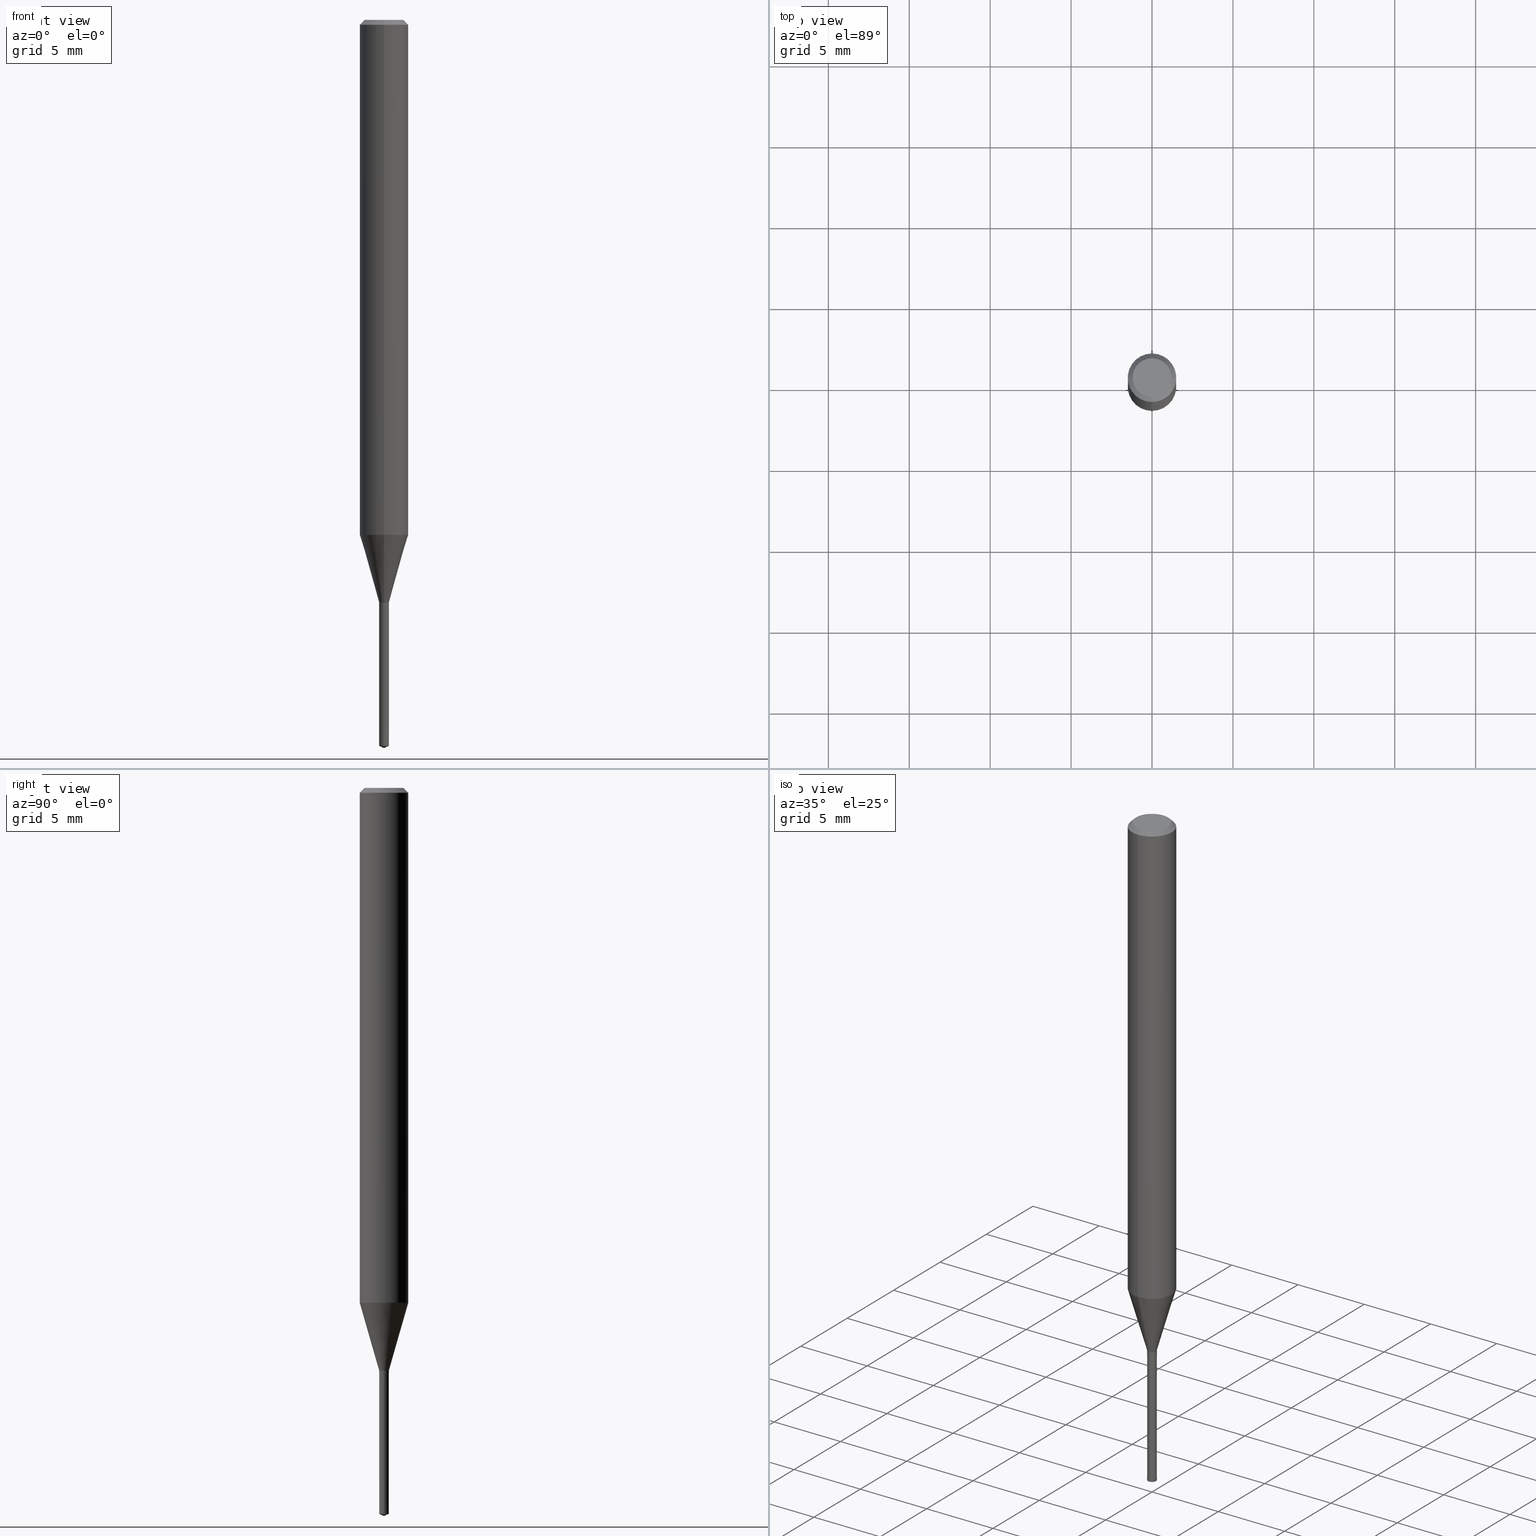
[diagram: canonical four-view strip — front | top / right | iso, engineering-drawing reading convention]
A machine part, canonical four-view strip (front | top / right | iso — engineering-drawing reading convention). The complete STEP part file that produces these views, byte-faithful:
ISO-10303-21;
HEADER;
FILE_DESCRIPTION(('no description'),'unknown implementation level');
FILE_NAME('UTDLX2060-090-Huellk.stp','  ',('CIMSOURCE GmbH'),('CADClick - KiM GmbH - www.kimweb.de'),'unknown preprocess','ACIS','unknown authorization');
FILE_SCHEMA(('automotive_design'));
ENDSEC;
DATA;
#1=MECHANICAL_DESIGN_GEOMETRIC_PRESENTATION_REPRESENTATION(' ',(#14,#15,#16,#17,#18,#19,#20,#21,#22,#23,#24,#25,#26,#27,#28,#29,#30,#31,#32,#33,#34,#35,#36,#37,#38,#39,#40,#41,#42,#43,#44,#45,#46,#47,#48,#49,#50,#51,#52,#53,#54,#55,#56,#57,#58,#59,#60,#61,#62,#63,#64,#65,#66,#67,#68,#69,#70,#71),#10);
#2=PRODUCT_DEFINITION_CONTEXT('',#72,'design');
#3=APPLICATION_PROTOCOL_DEFINITION('INTERNATIONAL STANDARD','automotive_design',1994,#72);
#4=PRODUCT_CATEGORY_RELATIONSHIP('NONE','NONE',#73,#74);
#5=SHAPE_DEFINITION_REPRESENTATION(#75,#76);
#6=PRODUCT_DEFINITION_CONTEXT('',#77,'design');
#7=APPLICATION_PROTOCOL_DEFINITION('INTERNATIONAL STANDARD','automotive_design',1994,#77);
#8=PRODUCT_CATEGORY_RELATIONSHIP('NONE','NONE',#78,#79);
#9=SHAPE_DEFINITION_REPRESENTATION(#80,#81);
#10= (GEOMETRIC_REPRESENTATION_CONTEXT(3)GLOBAL_UNCERTAINTY_ASSIGNED_CONTEXT((#84))GLOBAL_UNIT_ASSIGNED_CONTEXT((#86,#87,#88))REPRESENTATION_CONTEXT('NONE','WORKSPACE'));
#14=STYLED_ITEM('',(#90),#91);
#15=STYLED_ITEM('',(#92),#93);
#16=STYLED_ITEM('',(#94),#95);
#17=STYLED_ITEM('',(#96),#97);
#18=STYLED_ITEM('',(#98),#99);
#19=STYLED_ITEM('',(#100),#101);
#20=STYLED_ITEM('',(#102),#103);
#21=STYLED_ITEM('',(#104),#105);
#22=STYLED_ITEM('',(#106),#107);
#23=STYLED_ITEM('',(#108),#109);
#24=STYLED_ITEM('',(#110),#111);
#25=STYLED_ITEM('',(#112),#113);
#26=STYLED_ITEM('',(#114),#115);
#27=STYLED_ITEM('',(#116),#117);
#28=STYLED_ITEM('',(#118),#119);
#29=STYLED_ITEM('',(#120),#121);
#30=STYLED_ITEM('',(#122),#123);
#31=STYLED_ITEM('',(#124),#125);
#32=STYLED_ITEM('',(#126),#127);
#33=STYLED_ITEM('',(#128),#129);
#34=STYLED_ITEM('',(#130),#131);
#35=STYLED_ITEM('',(#132),#133);
#36=STYLED_ITEM('',(#134),#135);
#37=STYLED_ITEM('',(#136),#137);
#38=STYLED_ITEM('',(#138),#139);
#39=STYLED_ITEM('',(#140),#141);
#40=STYLED_ITEM('',(#142),#143);
#41=STYLED_ITEM('',(#144),#145);
#42=STYLED_ITEM('',(#146),#147);
#43=STYLED_ITEM('',(#148),#149);
#44=STYLED_ITEM('',(#150),#151);
#45=STYLED_ITEM('',(#152),#153);
#46=STYLED_ITEM('',(#154),#155);
#47=STYLED_ITEM('',(#156),#157);
#48=STYLED_ITEM('',(#158),#159);
#49=STYLED_ITEM('',(#160),#161);
#50=STYLED_ITEM('',(#162),#163);
#51=STYLED_ITEM('',(#164),#165);
#52=STYLED_ITEM('',(#166),#167);
#53=STYLED_ITEM('',(#168),#169);
#54=STYLED_ITEM('',(#170),#171);
#55=STYLED_ITEM('',(#172),#173);
#56=STYLED_ITEM('',(#174),#175);
#57=STYLED_ITEM('',(#176),#177);
#58=STYLED_ITEM('',(#178),#179);
#59=STYLED_ITEM('',(#180),#181);
#60=STYLED_ITEM('',(#182),#183);
#61=STYLED_ITEM('',(#184),#185);
#62=STYLED_ITEM('',(#186),#187);
#63=STYLED_ITEM('',(#188),#189);
#64=STYLED_ITEM('',(#190),#191);
#65=STYLED_ITEM('',(#192),#193);
#66=STYLED_ITEM('',(#194),#195);
#67=STYLED_ITEM('',(#196),#197);
#68=STYLED_ITEM('',(#198),#199);
#69=STYLED_ITEM('',(#200),#201);
#70=STYLED_ITEM('',(#202),#203);
#71=STYLED_ITEM('',(#204),#205);
#72=APPLICATION_CONTEXT(' ');
#73=PRODUCT_CATEGORY('part','NONE');
#74=PRODUCT_RELATED_PRODUCT_CATEGORY('detail',' ',(#206));
#75=PRODUCT_DEFINITION_SHAPE('NONE','NONE',#207);
#76=ADVANCED_BREP_SHAPE_REPRESENTATION('1',(#143,#208),#10);
#77=APPLICATION_CONTEXT(' ');
#78=PRODUCT_CATEGORY('part','NONE');
#79=PRODUCT_RELATED_PRODUCT_CATEGORY('detail',' ',(#209));
#80=PRODUCT_DEFINITION_SHAPE('NONE','NONE',#210);
#81=ADVANCED_BREP_SHAPE_REPRESENTATION('2',(#169,#211),#10);
#84=UNCERTAINTY_MEASURE_WITH_UNIT(LENGTH_MEASURE(1.0E-006),#86,'','');
#86= (CONVERSION_BASED_UNIT('MILLIMETRE',#214)LENGTH_UNIT()NAMED_UNIT(#217));
#87= (NAMED_UNIT(#219)PLANE_ANGLE_UNIT()SI_UNIT($,.RADIAN.));
#88= (NAMED_UNIT(#219)SOLID_ANGLE_UNIT()SI_UNIT($,.STERADIAN.));
#90=PRESENTATION_STYLE_ASSIGNMENT((#225));
#91=VERTEX_POINT('',#226);
#92=PRESENTATION_STYLE_ASSIGNMENT((#227));
#93=VERTEX_POINT('',#228);
#94=PRESENTATION_STYLE_ASSIGNMENT((#229));
#95=VERTEX_POINT('',#230);
#96=PRESENTATION_STYLE_ASSIGNMENT((#231));
#97=EDGE_CURVE('',#195,#155,#232,.T.);
#98=PRESENTATION_STYLE_ASSIGNMENT((#233));
#99=VERTEX_POINT('',#234);
#100=PRESENTATION_STYLE_ASSIGNMENT((#235));
#101=EDGE_CURVE('',#141,#167,#236,.T.);
#102=PRESENTATION_STYLE_ASSIGNMENT((#237));
#103=ADVANCED_FACE('',(#238),#239,.T.);
#104=PRESENTATION_STYLE_ASSIGNMENT((#240));
#105=ADVANCED_FACE('',(#241),#242,.T.);
#106=PRESENTATION_STYLE_ASSIGNMENT((#243));
#107=VERTEX_POINT('',#244);
#108=PRESENTATION_STYLE_ASSIGNMENT((#245));
#109=ADVANCED_FACE('',(#246),#247,.T.);
#110=PRESENTATION_STYLE_ASSIGNMENT((#248));
#111=EDGE_CURVE('',#179,#99,#249,.T.);
#112=PRESENTATION_STYLE_ASSIGNMENT((#250));
#113=ADVANCED_FACE('',(#251),#252,.T.);
#114=PRESENTATION_STYLE_ASSIGNMENT((#253));
#115=ADVANCED_FACE('',(#254),#255,.T.);
#116=PRESENTATION_STYLE_ASSIGNMENT((#256));
#117=ADVANCED_FACE('',(#257),#258,.T.);
#118=PRESENTATION_STYLE_ASSIGNMENT((#259));
#119=VERTEX_POINT('',#260);
#120=PRESENTATION_STYLE_ASSIGNMENT((#261));
#121=EDGE_CURVE('',#179,#107,#262,.T.);
#122=PRESENTATION_STYLE_ASSIGNMENT((#263));
#123=ADVANCED_FACE('',(#264),#265,.T.);
#124=PRESENTATION_STYLE_ASSIGNMENT((#266));
#125=ADVANCED_FACE('',(#267),#268,.T.);
#126=PRESENTATION_STYLE_ASSIGNMENT((#269));
#127=EDGE_CURVE('',#155,#119,#270,.T.);
#128=PRESENTATION_STYLE_ASSIGNMENT((#271));
#129=EDGE_CURVE('',#91,#93,#272,.T.);
#130=PRESENTATION_STYLE_ASSIGNMENT((#273));
#131=EDGE_CURVE('',#119,#155,#274,.T.);
#132=PRESENTATION_STYLE_ASSIGNMENT((#275));
#133=EDGE_CURVE('',#197,#91,#276,.T.);
#134=PRESENTATION_STYLE_ASSIGNMENT((#277));
#135=EDGE_CURVE('',#181,#119,#278,.T.);
#136=PRESENTATION_STYLE_ASSIGNMENT((#279));
#137=ADVANCED_FACE('',(#280),#281,.T.);
#138=PRESENTATION_STYLE_ASSIGNMENT((#282));
#139=EDGE_CURVE('',#163,#91,#283,.T.);
#140=PRESENTATION_STYLE_ASSIGNMENT((#284));
#141=VERTEX_POINT('',#285);
#142=PRESENTATION_STYLE_ASSIGNMENT((#286));
#143=MANIFOLD_SOLID_BREP('1',#287);
#144=PRESENTATION_STYLE_ASSIGNMENT((#288));
#145=EDGE_CURVE('',#99,#141,#289,.T.);
#146=PRESENTATION_STYLE_ASSIGNMENT((#290));
#147=EDGE_CURVE('',#155,#183,#291,.T.);
#148=PRESENTATION_STYLE_ASSIGNMENT((#292));
#149=ADVANCED_FACE('',(#293),#294,.T.);
#150=PRESENTATION_STYLE_ASSIGNMENT((#295));
#151=EDGE_CURVE('',#107,#163,#296,.T.);
#152=PRESENTATION_STYLE_ASSIGNMENT((#297));
#153=EDGE_CURVE('',#167,#179,#298,.T.);
#154=PRESENTATION_STYLE_ASSIGNMENT((#299));
#155=VERTEX_POINT('',#300);
#156=PRESENTATION_STYLE_ASSIGNMENT((#301));
#157=EDGE_CURVE('',#91,#163,#302,.T.);
#158=PRESENTATION_STYLE_ASSIGNMENT((#303));
#159=EDGE_CURVE('',#107,#93,#304,.T.);
#160=PRESENTATION_STYLE_ASSIGNMENT((#305));
#161=EDGE_CURVE('',#163,#95,#306,.T.);
#162=PRESENTATION_STYLE_ASSIGNMENT((#307));
#163=VERTEX_POINT('',#308);
#164=PRESENTATION_STYLE_ASSIGNMENT((#309));
#165=EDGE_CURVE('',#99,#179,#310,.T.);
#166=PRESENTATION_STYLE_ASSIGNMENT((#311));
#167=VERTEX_POINT('',#312);
#168=PRESENTATION_STYLE_ASSIGNMENT((#313));
#169=MANIFOLD_SOLID_BREP('2',#314);
#170=PRESENTATION_STYLE_ASSIGNMENT((#315));
#171=EDGE_CURVE('',#93,#107,#316,.T.);
#172=PRESENTATION_STYLE_ASSIGNMENT((#317));
#173=ADVANCED_FACE('',(#318),#319,.T.);
#174=PRESENTATION_STYLE_ASSIGNMENT((#320));
#175=EDGE_CURVE('',#197,#95,#321,.T.);
#176=PRESENTATION_STYLE_ASSIGNMENT((#322));
#177=EDGE_CURVE('',#181,#183,#323,.T.);
#178=PRESENTATION_STYLE_ASSIGNMENT((#324));
#179=VERTEX_POINT('',#325);
#180=PRESENTATION_STYLE_ASSIGNMENT((#326));
#181=VERTEX_POINT('',#327);
#182=PRESENTATION_STYLE_ASSIGNMENT((#328));
#183=VERTEX_POINT('',#329);
#184=PRESENTATION_STYLE_ASSIGNMENT((#330));
#185=EDGE_CURVE('',#95,#197,#331,.T.);
#186=PRESENTATION_STYLE_ASSIGNMENT((#332));
#187=EDGE_CURVE('',#119,#195,#333,.T.);
#188=PRESENTATION_STYLE_ASSIGNMENT((#334));
#189=EDGE_CURVE('',#183,#181,#335,.T.);
#190=PRESENTATION_STYLE_ASSIGNMENT((#336));
#191=ADVANCED_FACE('',(#337),#338,.T.);
#192=PRESENTATION_STYLE_ASSIGNMENT((#339));
#193=EDGE_CURVE('',#167,#141,#340,.T.);
#194=PRESENTATION_STYLE_ASSIGNMENT((#341));
#195=VERTEX_POINT('',#342);
#196=PRESENTATION_STYLE_ASSIGNMENT((#343));
#197=VERTEX_POINT('',#344);
#198=PRESENTATION_STYLE_ASSIGNMENT((#345));
#199=ADVANCED_FACE('',(#346),#347,.T.);
#200=PRESENTATION_STYLE_ASSIGNMENT((#348));
#201=EDGE_CURVE('',#93,#99,#349,.T.);
#202=PRESENTATION_STYLE_ASSIGNMENT((#350));
#203=ADVANCED_FACE('',(#351),#352,.T.);
#204=PRESENTATION_STYLE_ASSIGNMENT((#353));
#205=ADVANCED_FACE('',(#354),#355,.T.);
#206=PRODUCT('1','1','PART-1-DESC',(#356));
#207=PRODUCT_DEFINITION('NONE','NONE',#357,#2);
#208=AXIS2_PLACEMENT_3D('',#358,#359,#360);
#209=PRODUCT('2','2','PART-2-DESC',(#361));
#210=PRODUCT_DEFINITION('NONE','NONE',#362,#6);
#211=AXIS2_PLACEMENT_3D('',#363,#364,#365);
#214=LENGTH_MEASURE_WITH_UNIT(LENGTH_MEASURE(1.0),#366);
#217=DIMENSIONAL_EXPONENTS(1.0,0.0,0.0,0.0,0.0,0.0,0.0);
#219=DIMENSIONAL_EXPONENTS(0.0,0.0,0.0,0.0,0.0,0.0,0.0);
#225=POINT_STYLE(' ',#367,POSITIVE_LENGTH_MEASURE(1.0E-006),#368);
#226=CARTESIAN_POINT('',(3.67381906146713E-017,-0.3,-35.9991339745962));
#227=POINT_STYLE(' ',#369,POSITIVE_LENGTH_MEASURE(1.0E-006),#370);
#228=CARTESIAN_POINT('',(1.83690953073357E-016,-1.5,-31.815));
#229=POINT_STYLE(' ',#371,POSITIVE_LENGTH_MEASURE(1.0E-006),#372);
#230=CARTESIAN_POINT('',(0.0,0.3005,-36.0));
#231=CURVE_STYLE('',#373,POSITIVE_LENGTH_MEASURE(1.0E-006),#374);
#232=LINE('',#375,#376);
#233=POINT_STYLE(' ',#377,POSITIVE_LENGTH_MEASURE(1.0E-006),#378);
#234=CARTESIAN_POINT('',(1.83690953073357E-016,-1.5,-0.300000000000001));
#235=CURVE_STYLE('',#379,POSITIVE_LENGTH_MEASURE(1.0E-006),#380);
#236=CIRCLE('',#381,1.2);
#237=SURFACE_STYLE_USAGE(.BOTH.,#382);
#238=FACE_OUTER_BOUND('',#383,.T.);
#239=CONICAL_SURFACE('',#384,0.30025,0.523598775598408);
#240=SURFACE_STYLE_USAGE(.BOTH.,#385);
#241=FACE_OUTER_BOUND('',#386,.T.);
#242=CONICAL_SURFACE('',#387,0.30025,0.523598775598408);
#243=POINT_STYLE(' ',#388,POSITIVE_LENGTH_MEASURE(1.0E-006),#389);
#244=CARTESIAN_POINT('',(0.0,1.5,-31.815));
#245=SURFACE_STYLE_USAGE(.BOTH.,#390);
#246=FACE_OUTER_BOUND('',#391,.T.);
#247=CONICAL_SURFACE('',#392,0.9,0.279301019176269);
#248=CURVE_STYLE('',#393,POSITIVE_LENGTH_MEASURE(1.0E-006),#394);
#249=CIRCLE('',#395,1.5);
#250=SURFACE_STYLE_USAGE(.BOTH.,#396);
#251=FACE_OUTER_BOUND('',#397,.T.);
#252=CONICAL_SURFACE('',#398,0.3005,0.000112865444711671);
#253=SURFACE_STYLE_USAGE(.BOTH.,#399);
#254=FACE_OUTER_BOUND('',#400,.T.);
#255=PLANE('',#401);
#256=SURFACE_STYLE_USAGE(.BOTH.,#402);
#257=FACE_OUTER_BOUND('',#403,.T.);
#258=CONICAL_SURFACE('',#404,0.3005,0.000112865444711671);
#259=POINT_STYLE(' ',#405,POSITIVE_LENGTH_MEASURE(1.0E-006),#406);
#260=CARTESIAN_POINT('',(-0.3,0.0,-44.8601077));
#261=CURVE_STYLE('',#407,POSITIVE_LENGTH_MEASURE(1.0E-006),#408);
#262=LINE('',#409,#410);
#263=SURFACE_STYLE_USAGE(.BOTH.,#411);
#264=FACE_OUTER_BOUND('',#412,.T.);
#265=CYLINDRICAL_SURFACE('',#413,1.5);
#266=SURFACE_STYLE_USAGE(.BOTH.,#414);
#267=FACE_OUTER_BOUND('',#415,.T.);
#268=CONICAL_SURFACE('',#416,0.9,0.279301019176269);
#269=CURVE_STYLE('',#417,POSITIVE_LENGTH_MEASURE(1.0E-006),#418);
#270=CIRCLE('',#419,0.3);
#271=CURVE_STYLE('',#420,POSITIVE_LENGTH_MEASURE(1.0E-006),#421);
#272=LINE('',#422,#423);
#273=CURVE_STYLE('',#424,POSITIVE_LENGTH_MEASURE(1.0E-006),#425);
#274=CIRCLE('',#426,0.3);
#275=CURVE_STYLE('',#427,POSITIVE_LENGTH_MEASURE(1.0E-006),#428);
#276=LINE('',#429,#430);
#277=CURVE_STYLE('',#431,POSITIVE_LENGTH_MEASURE(1.0E-006),#432);
#278=LINE('',#433,#434);
#279=SURFACE_STYLE_USAGE(.BOTH.,#435);
#280=FACE_OUTER_BOUND('',#436,.T.);
#281=PLANE('',#437);
#282=CURVE_STYLE('',#438,POSITIVE_LENGTH_MEASURE(1.0E-006),#439);
#283=CIRCLE('',#440,0.3);
#284=POINT_STYLE(' ',#441,POSITIVE_LENGTH_MEASURE(1.0E-006),#442);
#285=CARTESIAN_POINT('',(1.46952762458685E-016,-1.2,0.0));
#286=SURFACE_STYLE_USAGE(.BOTH.,#443);
#287=CLOSED_SHELL('',(#105,#109,#191,#149,#137,#205,#123,#125,#103,#173));
#288=CURVE_STYLE('',#444,POSITIVE_LENGTH_MEASURE(1.0E-006),#445);
#289=LINE('',#446,#447);
#290=CURVE_STYLE('',#448,POSITIVE_LENGTH_MEASURE(1.0E-006),#449);
#291=LINE('',#450,#451);
#292=SURFACE_STYLE_USAGE(.BOTH.,#452);
#293=FACE_OUTER_BOUND('',#453,.T.);
#294=CONICAL_SURFACE('',#454,1.35,0.785398163397447);
#295=CURVE_STYLE('',#455,POSITIVE_LENGTH_MEASURE(1.0E-006),#456);
#296=LINE('',#457,#458);
#297=CURVE_STYLE('',#459,POSITIVE_LENGTH_MEASURE(1.0E-006),#460);
#298=LINE('',#461,#462);
#299=POINT_STYLE(' ',#463,POSITIVE_LENGTH_MEASURE(1.0E-006),#464);
#300=CARTESIAN_POINT('',(0.3,3.67381906146713E-017,-44.8601077));
#301=CURVE_STYLE('',#465,POSITIVE_LENGTH_MEASURE(1.0E-006),#466);
#302=CIRCLE('',#467,0.3);
#303=CURVE_STYLE('',#468,POSITIVE_LENGTH_MEASURE(1.0E-006),#469);
#304=CIRCLE('',#470,1.5);
#305=CURVE_STYLE('',#471,POSITIVE_LENGTH_MEASURE(1.0E-006),#472);
#306=LINE('',#473,#474);
#307=POINT_STYLE(' ',#475,POSITIVE_LENGTH_MEASURE(1.0E-006),#476);
#308=CARTESIAN_POINT('',(0.0,0.3,-35.9991339745962));
#309=CURVE_STYLE('',#477,POSITIVE_LENGTH_MEASURE(1.0E-006),#478);
#310=CIRCLE('',#479,1.5);
#311=POINT_STYLE(' ',#480,POSITIVE_LENGTH_MEASURE(1.0E-006),#481);
#312=CARTESIAN_POINT('',(0.0,1.2,0.0));
#313=SURFACE_STYLE_USAGE(.BOTH.,#482);
#314=CLOSED_SHELL('',(#199,#113,#115,#117,#203));
#315=CURVE_STYLE('',#483,POSITIVE_LENGTH_MEASURE(1.0E-006),#484);
#316=CIRCLE('',#485,1.5);
#317=SURFACE_STYLE_USAGE(.BOTH.,#486);
#318=FACE_OUTER_BOUND('',#487,.T.);
#319=PLANE('',#488);
#320=CURVE_STYLE('',#489,POSITIVE_LENGTH_MEASURE(1.0E-006),#490);
#321=CIRCLE('',#491,0.3005);
#322=CURVE_STYLE('',#492,POSITIVE_LENGTH_MEASURE(1.0E-006),#493);
#323=CIRCLE('',#494,0.301);
#324=POINT_STYLE(' ',#495,POSITIVE_LENGTH_MEASURE(1.0E-006),#496);
#325=CARTESIAN_POINT('',(0.0,1.5,-0.300000000000001));
#326=POINT_STYLE(' ',#497,POSITIVE_LENGTH_MEASURE(1.0E-006),#498);
#327=CARTESIAN_POINT('',(-0.301,0.0,-36.0));
#328=POINT_STYLE(' ',#499,POSITIVE_LENGTH_MEASURE(1.0E-006),#500);
#329=CARTESIAN_POINT('',(0.301,3.68606512500536E-017,-36.0));
#330=CURVE_STYLE('',#501,POSITIVE_LENGTH_MEASURE(1.0E-006),#502);
#331=CIRCLE('',#503,0.3005);
#332=CURVE_STYLE('',#504,POSITIVE_LENGTH_MEASURE(1.0E-006),#505);
#333=LINE('',#506,#507);
#334=CURVE_STYLE('',#508,POSITIVE_LENGTH_MEASURE(1.0E-006),#509);
#335=CIRCLE('',#510,0.301);
#336=SURFACE_STYLE_USAGE(.BOTH.,#511);
#337=FACE_OUTER_BOUND('',#512,.T.);
#338=CYLINDRICAL_SURFACE('',#513,1.5);
#339=CURVE_STYLE('',#514,POSITIVE_LENGTH_MEASURE(1.0E-006),#515);
#340=CIRCLE('',#516,1.2);
#341=POINT_STYLE(' ',#517,POSITIVE_LENGTH_MEASURE(1.0E-006),#518);
#342=CARTESIAN_POINT('',(0.0,0.0,-45.0));
#343=POINT_STYLE(' ',#519,POSITIVE_LENGTH_MEASURE(1.0E-006),#520);
#344=CARTESIAN_POINT('',(3.67994209323624E-017,-0.3005,-36.0));
#345=SURFACE_STYLE_USAGE(.BOTH.,#521);
#346=FACE_OUTER_BOUND('',#522,.T.);
#347=CONICAL_SURFACE('',#523,0.15,1.13446400680488);
#348=CURVE_STYLE('',#524,POSITIVE_LENGTH_MEASURE(1.0E-006),#525);
#349=LINE('',#526,#527);
#350=SURFACE_STYLE_USAGE(.BOTH.,#528);
#351=FACE_OUTER_BOUND('',#529,.T.);
#352=CONICAL_SURFACE('',#530,0.15,1.13446400680488);
#353=SURFACE_STYLE_USAGE(.BOTH.,#531);
#354=FACE_OUTER_BOUND('',#532,.T.);
#355=CONICAL_SURFACE('',#533,1.35,0.785398163397447);
#356=PRODUCT_CONTEXT('',#72,'mechanical');
#357=PRODUCT_DEFINITION_FORMATION_WITH_SPECIFIED_SOURCE(' ','NONE',#206,.NOT_KNOWN.);
#358=CARTESIAN_POINT('',(0.0,0.0,0.0));
#359=DIRECTION('',(0.0,0.0,1.0));
#360=DIRECTION('',(1.0,0.0,0.0));
#361=PRODUCT_CONTEXT('',#77,'mechanical');
#362=PRODUCT_DEFINITION_FORMATION_WITH_SPECIFIED_SOURCE(' ','NONE',#209,.NOT_KNOWN.);
#363=CARTESIAN_POINT('',(0.0,0.0,0.0));
#364=DIRECTION('',(0.0,0.0,1.0));
#365=DIRECTION('',(1.0,0.0,0.0));
#366= (NAMED_UNIT(#217)LENGTH_UNIT()SI_UNIT(.MILLI.,.METRE.));
#367=PRE_DEFINED_MARKER('');
#368=COLOUR_RGB('',0.498039215803146,0.498039215803146,0.498039215803146);
#369=PRE_DEFINED_MARKER('');
#370=COLOUR_RGB('',0.498039215803146,0.498039215803146,0.498039215803146);
#371=PRE_DEFINED_MARKER('');
#372=COLOUR_RGB('',0.498039215803146,0.498039215803146,0.498039215803146);
#373=DRAUGHTING_PRE_DEFINED_CURVE_FONT('continuous');
#374=COLOUR_RGB('',0.800000011920929,0.800000011920929,0.800000011920929);
#375=CARTESIAN_POINT('',(0.15,1.83690953073357E-017,-44.93005385));
#376=VECTOR('',#535,1.0);
#377=PRE_DEFINED_MARKER('');
#378=COLOUR_RGB('',0.498039215803146,0.498039215803146,0.498039215803146);
#379=DRAUGHTING_PRE_DEFINED_CURVE_FONT('continuous');
#380=COLOUR_RGB('',0.498039215803146,0.498039215803146,0.498039215803146);
#381=AXIS2_PLACEMENT_3D('',#536,#537,#538);
#382=SURFACE_SIDE_STYLE('',(#539));
#383=EDGE_LOOP('',(#540,#541,#542,#543));
#384=AXIS2_PLACEMENT_3D('',#544,#545,#546);
#385=SURFACE_SIDE_STYLE('',(#547));
#386=EDGE_LOOP('',(#548,#549,#550,#551));
#387=AXIS2_PLACEMENT_3D('',#552,#553,#554);
#388=PRE_DEFINED_MARKER('');
#389=COLOUR_RGB('',0.498039215803146,0.498039215803146,0.498039215803146);
#390=SURFACE_SIDE_STYLE('',(#555));
#391=EDGE_LOOP('',(#556,#557,#558,#559));
#392=AXIS2_PLACEMENT_3D('',#560,#561,#562);
#393=DRAUGHTING_PRE_DEFINED_CURVE_FONT('continuous');
#394=COLOUR_RGB('',0.498039215803146,0.498039215803146,0.498039215803146);
#395=AXIS2_PLACEMENT_3D('',#563,#564,#565);
#396=SURFACE_SIDE_STYLE('',(#566));
#397=EDGE_LOOP('',(#567,#568,#569,#570));
#398=AXIS2_PLACEMENT_3D('',#571,#572,#573);
#399=SURFACE_SIDE_STYLE('',(#574));
#400=EDGE_LOOP('',(#575,#576));
#401=AXIS2_PLACEMENT_3D('',#577,#578,#579);
#402=SURFACE_SIDE_STYLE('',(#580));
#403=EDGE_LOOP('',(#581,#582,#583,#584));
#404=AXIS2_PLACEMENT_3D('',#585,#586,#587);
#405=PRE_DEFINED_MARKER('');
#406=COLOUR_RGB('',0.800000011920929,0.800000011920929,0.800000011920929);
#407=DRAUGHTING_PRE_DEFINED_CURVE_FONT('continuous');
#408=COLOUR_RGB('',0.498039215803146,0.498039215803146,0.498039215803146);
#409=CARTESIAN_POINT('',(-1.83690953073357E-016,1.5,-16.0575));
#410=VECTOR('',#588,1.0);
#411=SURFACE_SIDE_STYLE('',(#589));
#412=EDGE_LOOP('',(#590,#591,#592,#593));
#413=AXIS2_PLACEMENT_3D('',#594,#595,#596);
#414=SURFACE_SIDE_STYLE('',(#597));
#415=EDGE_LOOP('',(#598,#599,#600,#601));
#416=AXIS2_PLACEMENT_3D('',#602,#603,#604);
#417=DRAUGHTING_PRE_DEFINED_CURVE_FONT('continuous');
#418=COLOUR_RGB('',0.800000011920929,0.800000011920929,0.800000011920929);
#419=AXIS2_PLACEMENT_3D('',#605,#606,#607);
#420=DRAUGHTING_PRE_DEFINED_CURVE_FONT('continuous');
#421=COLOUR_RGB('',0.498039215803146,0.498039215803146,0.498039215803146);
#422=CARTESIAN_POINT('',(1.10214571844014E-016,-0.9,-33.9070669872981));
#423=VECTOR('',#608,1.0);
#424=DRAUGHTING_PRE_DEFINED_CURVE_FONT('continuous');
#425=COLOUR_RGB('',0.800000011920929,0.800000011920929,0.800000011920929);
#426=AXIS2_PLACEMENT_3D('',#609,#610,#611);
#427=DRAUGHTING_PRE_DEFINED_CURVE_FONT('continuous');
#428=COLOUR_RGB('',0.498039215803146,0.498039215803146,0.498039215803146);
#429=CARTESIAN_POINT('',(3.67688057735169E-017,-0.30025,-35.9995669872981));
#430=VECTOR('',#612,1.0);
#431=DRAUGHTING_PRE_DEFINED_CURVE_FONT('continuous');
#432=COLOUR_RGB('',0.800000011920929,0.800000011920929,0.800000011920929);
#433=CARTESIAN_POINT('',(-0.3005,-3.67994209323625E-017,-40.43005385));
#434=VECTOR('',#613,1.0);
#435=SURFACE_SIDE_STYLE('',(#614));
#436=EDGE_LOOP('',(#615,#616));
#437=AXIS2_PLACEMENT_3D('',#617,#618,#619);
#438=DRAUGHTING_PRE_DEFINED_CURVE_FONT('continuous');
#439=COLOUR_RGB('',0.498039215803146,0.498039215803146,0.498039215803146);
#440=AXIS2_PLACEMENT_3D('',#620,#621,#622);
#441=PRE_DEFINED_MARKER('');
#442=COLOUR_RGB('',0.498039215803146,0.498039215803146,0.498039215803146);
#443=SURFACE_SIDE_STYLE('',(#623));
#444=DRAUGHTING_PRE_DEFINED_CURVE_FONT('continuous');
#445=COLOUR_RGB('',0.498039215803146,0.498039215803146,0.498039215803146);
#446=CARTESIAN_POINT('',(1.65321857766021E-016,-1.35,-0.149999999999999));
#447=VECTOR('',#624,1.0);
#448=DRAUGHTING_PRE_DEFINED_CURVE_FONT('continuous');
#449=COLOUR_RGB('',0.800000011920929,0.800000011920929,0.800000011920929);
#450=CARTESIAN_POINT('',(0.3005,3.67994209323624E-017,-40.43005385));
#451=VECTOR('',#625,1.0);
#452=SURFACE_SIDE_STYLE('',(#626));
#453=EDGE_LOOP('',(#627,#628,#629,#630));
#454=AXIS2_PLACEMENT_3D('',#631,#632,#633);
#455=DRAUGHTING_PRE_DEFINED_CURVE_FONT('continuous');
#456=COLOUR_RGB('',0.498039215803146,0.498039215803146,0.498039215803146);
#457=CARTESIAN_POINT('',(-1.10214571844014E-016,0.9,-33.9070669872981));
#458=VECTOR('',#634,1.0);
#459=DRAUGHTING_PRE_DEFINED_CURVE_FONT('continuous');
#460=COLOUR_RGB('',0.498039215803146,0.498039215803146,0.498039215803146);
#461=CARTESIAN_POINT('',(-1.65321857766021E-016,1.35,-0.149999999999999));
#462=VECTOR('',#635,1.0);
#463=PRE_DEFINED_MARKER('');
#464=COLOUR_RGB('',0.800000011920929,0.800000011920929,0.800000011920929);
#465=DRAUGHTING_PRE_DEFINED_CURVE_FONT('continuous');
#466=COLOUR_RGB('',0.498039215803146,0.498039215803146,0.498039215803146);
#467=AXIS2_PLACEMENT_3D('',#636,#637,#638);
#468=DRAUGHTING_PRE_DEFINED_CURVE_FONT('continuous');
#469=COLOUR_RGB('',0.498039215803146,0.498039215803146,0.498039215803146);
#470=AXIS2_PLACEMENT_3D('',#639,#640,#641);
#471=DRAUGHTING_PRE_DEFINED_CURVE_FONT('continuous');
#472=COLOUR_RGB('',0.498039215803146,0.498039215803146,0.498039215803146);
#473=CARTESIAN_POINT('',(-3.67688057735169E-017,0.30025,-35.9995669872981));
#474=VECTOR('',#642,1.0);
#475=PRE_DEFINED_MARKER('');
#476=COLOUR_RGB('',0.498039215803146,0.498039215803146,0.498039215803146);
#477=DRAUGHTING_PRE_DEFINED_CURVE_FONT('continuous');
#478=COLOUR_RGB('',0.498039215803146,0.498039215803146,0.498039215803146);
#479=AXIS2_PLACEMENT_3D('',#643,#644,#645);
#480=PRE_DEFINED_MARKER('');
#481=COLOUR_RGB('',0.498039215803146,0.498039215803146,0.498039215803146);
#482=SURFACE_SIDE_STYLE('',(#646));
#483=DRAUGHTING_PRE_DEFINED_CURVE_FONT('continuous');
#484=COLOUR_RGB('',0.498039215803146,0.498039215803146,0.498039215803146);
#485=AXIS2_PLACEMENT_3D('',#647,#648,#649);
#486=SURFACE_SIDE_STYLE('',(#650));
#487=EDGE_LOOP('',(#651,#652));
#488=AXIS2_PLACEMENT_3D('',#653,#654,#655);
#489=DRAUGHTING_PRE_DEFINED_CURVE_FONT('continuous');
#490=COLOUR_RGB('',0.498039215803146,0.498039215803146,0.498039215803146);
#491=AXIS2_PLACEMENT_3D('',#656,#657,#658);
#492=DRAUGHTING_PRE_DEFINED_CURVE_FONT('continuous');
#493=COLOUR_RGB('',0.800000011920929,0.800000011920929,0.800000011920929);
#494=AXIS2_PLACEMENT_3D('',#659,#660,#661);
#495=PRE_DEFINED_MARKER('');
#496=COLOUR_RGB('',0.498039215803146,0.498039215803146,0.498039215803146);
#497=PRE_DEFINED_MARKER('');
#498=COLOUR_RGB('',0.800000011920929,0.800000011920929,0.800000011920929);
#499=PRE_DEFINED_MARKER('');
#500=COLOUR_RGB('',0.800000011920929,0.800000011920929,0.800000011920929);
#501=DRAUGHTING_PRE_DEFINED_CURVE_FONT('continuous');
#502=COLOUR_RGB('',0.498039215803146,0.498039215803146,0.498039215803146);
#503=AXIS2_PLACEMENT_3D('',#662,#663,#664);
#504=DRAUGHTING_PRE_DEFINED_CURVE_FONT('continuous');
#505=COLOUR_RGB('',0.800000011920929,0.800000011920929,0.800000011920929);
#506=CARTESIAN_POINT('',(-0.15,-1.83690953073357E-017,-44.93005385));
#507=VECTOR('',#665,1.0);
#508=DRAUGHTING_PRE_DEFINED_CURVE_FONT('continuous');
#509=COLOUR_RGB('',0.800000011920929,0.800000011920929,0.800000011920929);
#510=AXIS2_PLACEMENT_3D('',#666,#667,#668);
#511=SURFACE_SIDE_STYLE('',(#669));
#512=EDGE_LOOP('',(#670,#671,#672,#673));
#513=AXIS2_PLACEMENT_3D('',#674,#675,#676);
#514=DRAUGHTING_PRE_DEFINED_CURVE_FONT('continuous');
#515=COLOUR_RGB('',0.498039215803146,0.498039215803146,0.498039215803146);
#516=AXIS2_PLACEMENT_3D('',#677,#678,#679);
#517=PRE_DEFINED_MARKER('');
#518=COLOUR_RGB('',0.800000011920929,0.800000011920929,0.800000011920929);
#519=PRE_DEFINED_MARKER('');
#520=COLOUR_RGB('',0.498039215803146,0.498039215803146,0.498039215803146);
#521=SURFACE_SIDE_STYLE('',(#680));
#522=EDGE_LOOP('',(#681,#682,#683));
#523=AXIS2_PLACEMENT_3D('',#684,#685,#686);
#524=DRAUGHTING_PRE_DEFINED_CURVE_FONT('continuous');
#525=COLOUR_RGB('',0.498039215803146,0.498039215803146,0.498039215803146);
#526=CARTESIAN_POINT('',(1.83690953073357E-016,-1.5,-16.0575));
#527=VECTOR('',#687,1.0);
#528=SURFACE_SIDE_STYLE('',(#688));
#529=EDGE_LOOP('',(#689,#690,#691));
#530=AXIS2_PLACEMENT_3D('',#692,#693,#694);
#531=SURFACE_SIDE_STYLE('',(#695));
#532=EDGE_LOOP('',(#696,#697,#698,#699));
#533=AXIS2_PLACEMENT_3D('',#700,#701,#702);
#535=DIRECTION('',(0.906307784081944,1.10987027090543E-016,0.422618268077087));
#536=CARTESIAN_POINT('',(0.0,0.0,0.0));
#537=DIRECTION('',(0.0,0.0,-1.0));
#538=DIRECTION('',(0.0,1.0,0.0));
#539=SURFACE_STYLE_FILL_AREA(#703);
#540=ORIENTED_EDGE('',*,*,#161,.T.);
#541=ORIENTED_EDGE('',*,*,#175,.F.);
#542=ORIENTED_EDGE('',*,*,#133,.T.);
#543=ORIENTED_EDGE('',*,*,#157,.T.);
#544=CARTESIAN_POINT('',(0.0,0.0,-35.9995669872981));
#545=DIRECTION('',(0.0,-0.0,-1.0));
#546=DIRECTION('',(0.0,1.0,0.0));
#547=SURFACE_STYLE_FILL_AREA(#704);
#548=ORIENTED_EDGE('',*,*,#161,.F.);
#549=ORIENTED_EDGE('',*,*,#139,.T.);
#550=ORIENTED_EDGE('',*,*,#133,.F.);
#551=ORIENTED_EDGE('',*,*,#185,.F.);
#552=CARTESIAN_POINT('',(0.0,0.0,-35.9995669872981));
#553=DIRECTION('',(0.0,-0.0,-1.0));
#554=DIRECTION('',(0.0,1.0,0.0));
#555=SURFACE_STYLE_FILL_AREA(#705);
#556=ORIENTED_EDGE('',*,*,#151,.F.);
#557=ORIENTED_EDGE('',*,*,#159,.T.);
#558=ORIENTED_EDGE('',*,*,#129,.F.);
#559=ORIENTED_EDGE('',*,*,#139,.F.);
#560=CARTESIAN_POINT('',(0.0,0.0,-33.9070669872981));
#561=DIRECTION('',(-0.0,-0.0,1.0));
#562=DIRECTION('',(0.0,1.0,0.0));
#563=CARTESIAN_POINT('',(0.0,0.0,-0.300000000000001));
#564=DIRECTION('',(0.0,0.0,-1.0));
#565=DIRECTION('',(0.0,1.0,0.0));
#566=SURFACE_STYLE_FILL_AREA(#706);
#567=ORIENTED_EDGE('',*,*,#135,.F.);
#568=ORIENTED_EDGE('',*,*,#177,.T.);
#569=ORIENTED_EDGE('',*,*,#147,.F.);
#570=ORIENTED_EDGE('',*,*,#131,.F.);
#571=CARTESIAN_POINT('',(0.0,0.0,-40.43005385));
#572=DIRECTION('',(-0.0,-0.0,1.0));
#573=DIRECTION('',(-1.0,0.0,0.0));
#574=SURFACE_STYLE_FILL_AREA(#707);
#575=ORIENTED_EDGE('',*,*,#177,.F.);
#576=ORIENTED_EDGE('',*,*,#189,.F.);
#577=CARTESIAN_POINT('',(-0.1505,0.0,-36.0));
#578=DIRECTION('',(0.0,0.0,1.0));
#579=DIRECTION('',(1.0,0.0,0.0));
#580=SURFACE_STYLE_FILL_AREA(#708);
#581=ORIENTED_EDGE('',*,*,#135,.T.);
#582=ORIENTED_EDGE('',*,*,#127,.F.);
#583=ORIENTED_EDGE('',*,*,#147,.T.);
#584=ORIENTED_EDGE('',*,*,#189,.T.);
#585=CARTESIAN_POINT('',(0.0,0.0,-40.43005385));
#586=DIRECTION('',(-0.0,-0.0,1.0));
#587=DIRECTION('',(-1.0,0.0,0.0));
#588=DIRECTION('',(0.0,0.0,-1.0));
#589=SURFACE_STYLE_FILL_AREA(#709);
#590=ORIENTED_EDGE('',*,*,#121,.T.);
#591=ORIENTED_EDGE('',*,*,#171,.F.);
#592=ORIENTED_EDGE('',*,*,#201,.T.);
#593=ORIENTED_EDGE('',*,*,#165,.T.);
#594=CARTESIAN_POINT('',(0.0,0.0,-16.0575));
#595=DIRECTION('',(-0.0,-0.0,1.0));
#596=DIRECTION('',(0.0,1.0,0.0));
#597=SURFACE_STYLE_FILL_AREA(#710);
#598=ORIENTED_EDGE('',*,*,#151,.T.);
#599=ORIENTED_EDGE('',*,*,#157,.F.);
#600=ORIENTED_EDGE('',*,*,#129,.T.);
#601=ORIENTED_EDGE('',*,*,#171,.T.);
#602=CARTESIAN_POINT('',(0.0,0.0,-33.9070669872981));
#603=DIRECTION('',(-0.0,-0.0,1.0));
#604=DIRECTION('',(0.0,1.0,0.0));
#605=CARTESIAN_POINT('',(0.0,0.0,-44.8601077));
#606=DIRECTION('',(0.0,0.0,-1.0));
#607=DIRECTION('',(-1.0,0.0,0.0));
#608=DIRECTION('',(3.37604159806123E-017,-0.275683821786777,0.961248370820485));
#609=CARTESIAN_POINT('',(0.0,0.0,-44.8601077));
#610=DIRECTION('',(0.0,0.0,-1.0));
#611=DIRECTION('',(-1.0,0.0,0.0));
#612=DIRECTION('',(-6.12303176911305E-017,0.500000000000095,0.866025403784384));
#613=DIRECTION('',(0.000112865444472046,1.38215740427454E-020,-0.999999993630696));
#614=SURFACE_STYLE_FILL_AREA(#711);
#615=ORIENTED_EDGE('',*,*,#193,.F.);
#616=ORIENTED_EDGE('',*,*,#101,.F.);
#617=CARTESIAN_POINT('',(0.0,0.6,0.0));
#618=DIRECTION('',(-0.0,0.0,1.0));
#619=DIRECTION('',(0.0,-1.0,0.0));
#620=CARTESIAN_POINT('',(0.0,0.0,-35.9991339745962));
#621=DIRECTION('',(0.0,0.0,-1.0));
#622=DIRECTION('',(0.0,1.0,0.0));
#623=SURFACE_STYLE_FILL_AREA(#712);
#624=DIRECTION('',(-8.65927457071934E-017,0.707106781186546,0.707106781186549));
#625=DIRECTION('',(0.000112865444472046,1.38215740427454E-020,0.999999993630696));
#626=SURFACE_STYLE_FILL_AREA(#713);
#627=ORIENTED_EDGE('',*,*,#153,.F.);
#628=ORIENTED_EDGE('',*,*,#193,.T.);
#629=ORIENTED_EDGE('',*,*,#145,.F.);
#630=ORIENTED_EDGE('',*,*,#111,.F.);
#631=CARTESIAN_POINT('',(0.0,0.0,-0.149999999999999));
#632=DIRECTION('',(0.0,-0.0,-1.0));
#633=DIRECTION('',(0.0,1.0,0.0));
#634=DIRECTION('',(3.37604159806123E-017,-0.275683821786777,-0.961248370820485));
#635=DIRECTION('',(-8.65927457071934E-017,0.707106781186546,-0.707106781186549));
#636=CARTESIAN_POINT('',(0.0,0.0,-35.9991339745962));
#637=DIRECTION('',(0.0,0.0,-1.0));
#638=DIRECTION('',(0.0,1.0,0.0));
#639=CARTESIAN_POINT('',(0.0,0.0,-31.815));
#640=DIRECTION('',(0.0,0.0,-1.0));
#641=DIRECTION('',(0.0,1.0,0.0));
#642=DIRECTION('',(-6.12303176911305E-017,0.500000000000095,-0.866025403784384));
#643=CARTESIAN_POINT('',(0.0,0.0,-0.300000000000001));
#644=DIRECTION('',(0.0,0.0,-1.0));
#645=DIRECTION('',(0.0,1.0,0.0));
#646=SURFACE_STYLE_FILL_AREA(#714);
#647=CARTESIAN_POINT('',(0.0,0.0,-31.815));
#648=DIRECTION('',(0.0,0.0,-1.0));
#649=DIRECTION('',(0.0,1.0,0.0));
#650=SURFACE_STYLE_FILL_AREA(#715);
#651=ORIENTED_EDGE('',*,*,#185,.T.);
#652=ORIENTED_EDGE('',*,*,#175,.T.);
#653=CARTESIAN_POINT('',(0.0,0.15025,-36.0));
#654=DIRECTION('',(0.0,0.0,-1.0));
#655=DIRECTION('',(0.0,1.0,0.0));
#656=CARTESIAN_POINT('',(0.0,0.0,-36.0));
#657=DIRECTION('',(0.0,0.0,-1.0));
#658=DIRECTION('',(0.0,1.0,0.0));
#659=CARTESIAN_POINT('',(0.0,0.0,-36.0));
#660=DIRECTION('',(0.0,0.0,-1.0));
#661=DIRECTION('',(-1.0,0.0,0.0));
#662=CARTESIAN_POINT('',(0.0,0.0,-36.0));
#663=DIRECTION('',(0.0,0.0,-1.0));
#664=DIRECTION('',(0.0,1.0,0.0));
#665=DIRECTION('',(0.906307784081944,1.10987027090543E-016,-0.422618268077087));
#666=CARTESIAN_POINT('',(0.0,0.0,-36.0));
#667=DIRECTION('',(0.0,0.0,-1.0));
#668=DIRECTION('',(-1.0,0.0,0.0));
#669=SURFACE_STYLE_FILL_AREA(#716);
#670=ORIENTED_EDGE('',*,*,#121,.F.);
#671=ORIENTED_EDGE('',*,*,#111,.T.);
#672=ORIENTED_EDGE('',*,*,#201,.F.);
#673=ORIENTED_EDGE('',*,*,#159,.F.);
#674=CARTESIAN_POINT('',(0.0,0.0,-16.0575));
#675=DIRECTION('',(-0.0,-0.0,1.0));
#676=DIRECTION('',(0.0,1.0,0.0));
#677=CARTESIAN_POINT('',(0.0,0.0,0.0));
#678=DIRECTION('',(0.0,0.0,-1.0));
#679=DIRECTION('',(0.0,1.0,0.0));
#680=SURFACE_STYLE_FILL_AREA(#717);
#681=ORIENTED_EDGE('',*,*,#97,.F.);
#682=ORIENTED_EDGE('',*,*,#187,.F.);
#683=ORIENTED_EDGE('',*,*,#131,.T.);
#684=CARTESIAN_POINT('',(0.0,0.0,-44.93005385));
#685=DIRECTION('',(-0.0,-0.0,1.0));
#686=DIRECTION('',(-1.0,0.0,0.0));
#687=DIRECTION('',(-0.0,-0.0,1.0));
#688=SURFACE_STYLE_FILL_AREA(#718);
#689=ORIENTED_EDGE('',*,*,#97,.T.);
#690=ORIENTED_EDGE('',*,*,#127,.T.);
#691=ORIENTED_EDGE('',*,*,#187,.T.);
#692=CARTESIAN_POINT('',(0.0,0.0,-44.93005385));
#693=DIRECTION('',(-0.0,-0.0,1.0));
#694=DIRECTION('',(-1.0,0.0,0.0));
#695=SURFACE_STYLE_FILL_AREA(#719);
#696=ORIENTED_EDGE('',*,*,#153,.T.);
#697=ORIENTED_EDGE('',*,*,#165,.F.);
#698=ORIENTED_EDGE('',*,*,#145,.T.);
#699=ORIENTED_EDGE('',*,*,#101,.T.);
#700=CARTESIAN_POINT('',(0.0,0.0,-0.149999999999999));
#701=DIRECTION('',(0.0,-0.0,-1.0));
#702=DIRECTION('',(0.0,1.0,0.0));
#703=FILL_AREA_STYLE('',(#720));
#704=FILL_AREA_STYLE('',(#721));
#705=FILL_AREA_STYLE('',(#722));
#706=FILL_AREA_STYLE('',(#723));
#707=FILL_AREA_STYLE('',(#724));
#708=FILL_AREA_STYLE('',(#725));
#709=FILL_AREA_STYLE('',(#726));
#710=FILL_AREA_STYLE('',(#727));
#711=FILL_AREA_STYLE('',(#728));
#712=FILL_AREA_STYLE('',(#729));
#713=FILL_AREA_STYLE('',(#730));
#714=FILL_AREA_STYLE('',(#731));
#715=FILL_AREA_STYLE('',(#732));
#716=FILL_AREA_STYLE('',(#733));
#717=FILL_AREA_STYLE('',(#734));
#718=FILL_AREA_STYLE('',(#735));
#719=FILL_AREA_STYLE('',(#736));
#720=FILL_AREA_STYLE_COLOUR('',#737);
#721=FILL_AREA_STYLE_COLOUR('',#738);
#722=FILL_AREA_STYLE_COLOUR('',#739);
#723=FILL_AREA_STYLE_COLOUR('',#740);
#724=FILL_AREA_STYLE_COLOUR('',#741);
#725=FILL_AREA_STYLE_COLOUR('',#742);
#726=FILL_AREA_STYLE_COLOUR('',#743);
#727=FILL_AREA_STYLE_COLOUR('',#744);
#728=FILL_AREA_STYLE_COLOUR('',#745);
#729=FILL_AREA_STYLE_COLOUR('',#746);
#730=FILL_AREA_STYLE_COLOUR('',#747);
#731=FILL_AREA_STYLE_COLOUR('',#748);
#732=FILL_AREA_STYLE_COLOUR('',#749);
#733=FILL_AREA_STYLE_COLOUR('',#750);
#734=FILL_AREA_STYLE_COLOUR('',#751);
#735=FILL_AREA_STYLE_COLOUR('',#752);
#736=FILL_AREA_STYLE_COLOUR('',#753);
#737=COLOUR_RGB('',0.498039215803146,0.498039215803146,0.498039215803146);
#738=COLOUR_RGB('',0.498039215803146,0.498039215803146,0.498039215803146);
#739=COLOUR_RGB('',0.498039215803146,0.498039215803146,0.498039215803146);
#740=COLOUR_RGB('',0.800000011920929,0.800000011920929,0.800000011920929);
#741=COLOUR_RGB('',0.800000011920929,0.800000011920929,0.800000011920929);
#742=COLOUR_RGB('',0.800000011920929,0.800000011920929,0.800000011920929);
#743=COLOUR_RGB('',0.498039215803146,0.498039215803146,0.498039215803146);
#744=COLOUR_RGB('',0.498039215803146,0.498039215803146,0.498039215803146);
#745=COLOUR_RGB('',0.498039215803146,0.498039215803146,0.498039215803146);
#746=COLOUR_RGB('',0.498039215803146,0.498039215803146,0.498039215803146);
#747=COLOUR_RGB('',0.498039215803146,0.498039215803146,0.498039215803146);
#748=COLOUR_RGB('',0.800000011920929,0.800000011920929,0.800000011920929);
#749=COLOUR_RGB('',0.498039215803146,0.498039215803146,0.498039215803146);
#750=COLOUR_RGB('',0.498039215803146,0.498039215803146,0.498039215803146);
#751=COLOUR_RGB('',0.800000011920929,0.800000011920929,0.800000011920929);
#752=COLOUR_RGB('',0.800000011920929,0.800000011920929,0.800000011920929);
#753=COLOUR_RGB('',0.498039215803146,0.498039215803146,0.498039215803146);
#754=AXIS2_PLACEMENT_3D('PCS',#755,#756,#757);
#755=CARTESIAN_POINT('',(0.0,0.0,0.0));
#756=DIRECTION('',(0.0,0.0,1.0));
#757=DIRECTION('',(1.0,0.0,0.0));
#758=AXIS2_PLACEMENT_3D('CIP',#759,#760,#761);
#759=CARTESIAN_POINT('',(0.0,0.0,-45.0));
#760=DIRECTION('',(0.0,0.0,1.0));
#761=DIRECTION('',(1.0,0.0,0.0));
#762=AXIS2_PLACEMENT_3D('CRP',#763,#764,#765);
#763=CARTESIAN_POINT('',(-0.3,0.0,-44.8601));
#764=DIRECTION('',(0.0,0.0,1.0));
#765=DIRECTION('',(1.0,0.0,0.0));
#766=AXIS2_PLACEMENT_3D('MCS',#767,#768,#769);
#767=CARTESIAN_POINT('',(0.0,0.0,-31.815));
#768=DIRECTION('',(0.0,0.0,1.0));
#769=DIRECTION('',(1.0,0.0,0.0));
#770=CONSTRUCTIVE_GEOMETRY_REPRESENTATION_RELATIONSHIP('coordinate systems',$,#76,#771);
#771=CONSTRUCTIVE_GEOMETRY_REPRESENTATION('coordinate systems',(#754,#758,#762,#766),#10);
ENDSEC;
END-ISO-10303-21;
